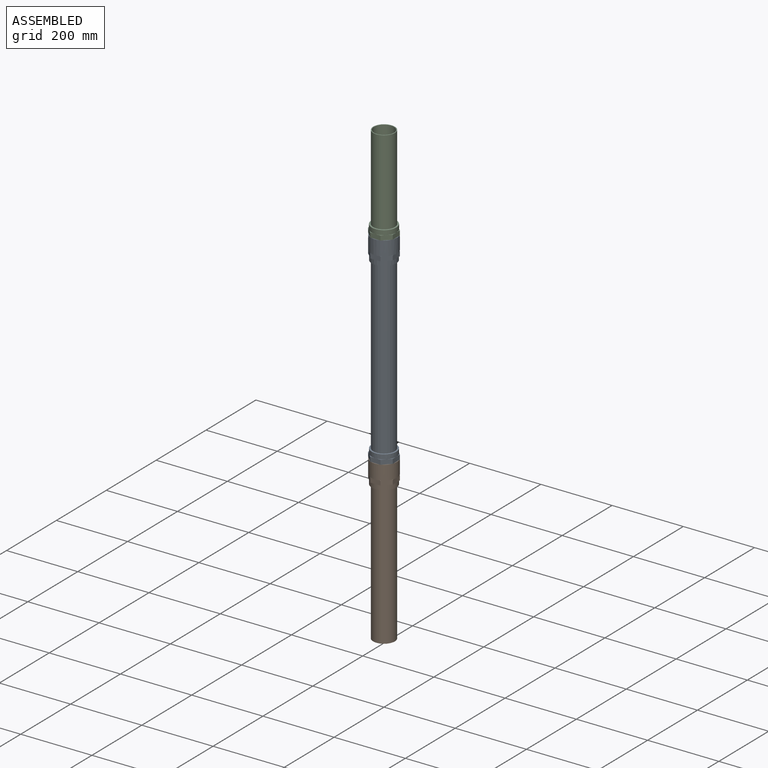
[diagram: assembled view]
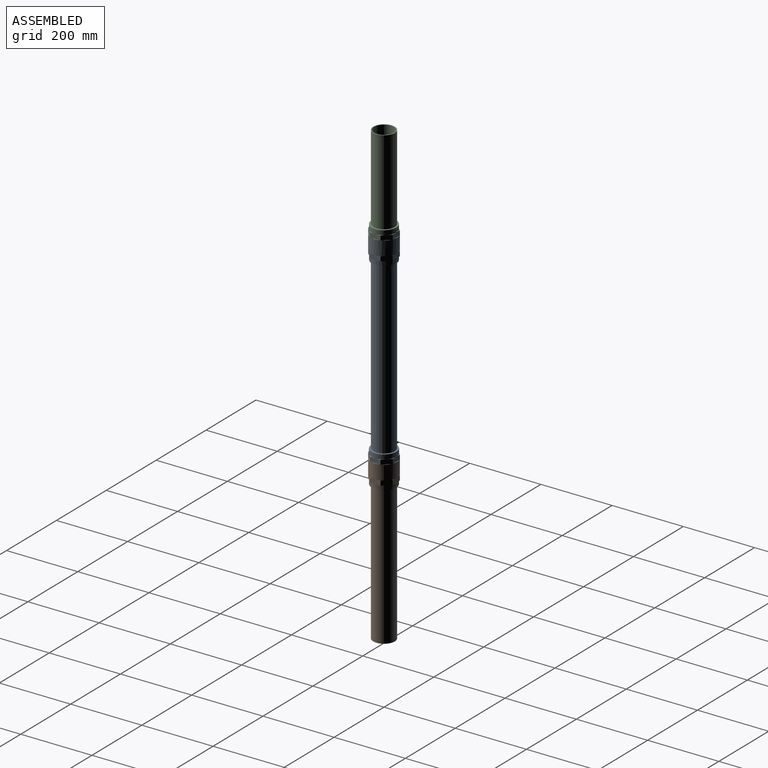
[diagram: assembled view, second angle]
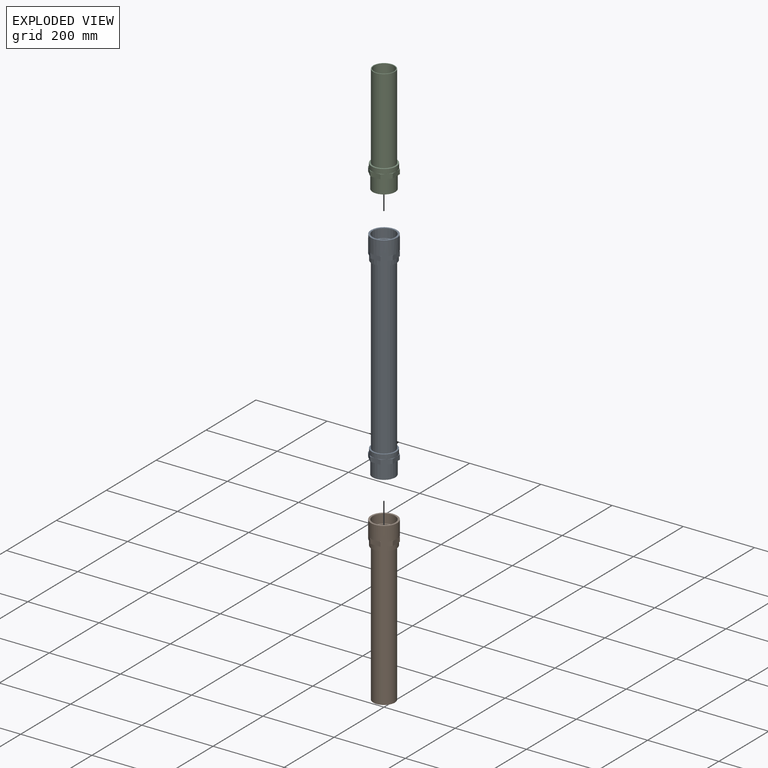
[diagram: exploded view]
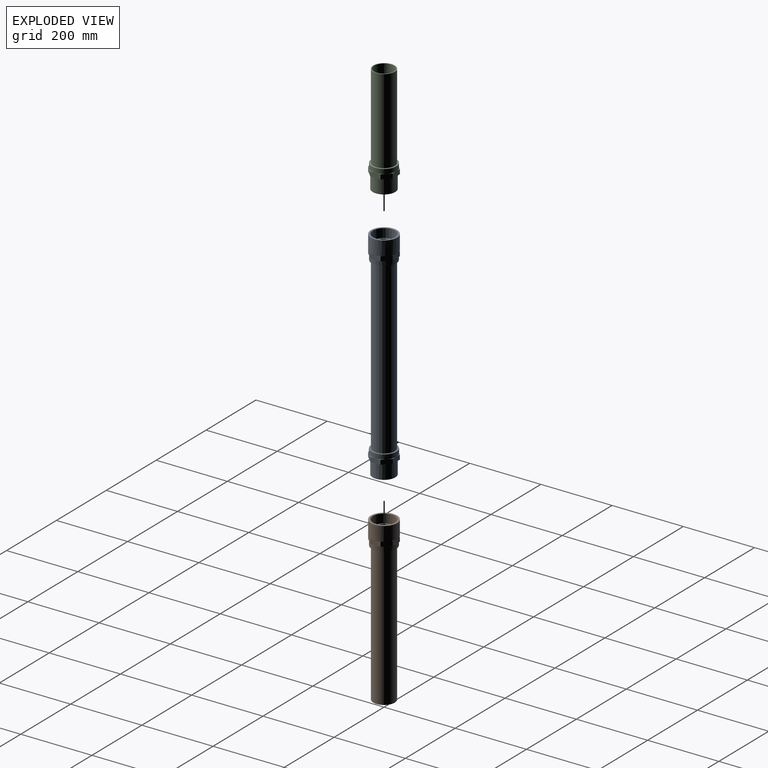
[diagram: exploded view, second angle]
ASSEMBLY  parts=3 mates=2
PART A: 54 faces, bbox 73.2x73.2x609.6 mm
  f0: cylinder r=34.67mm len=69.34mm, axis (0,0,-1), area 2766.6mm2, adj f13,f46,f47,f48,f49,f50,f51,f52
  f1: plane 16.48x16.48mm, normal (0,0,-1), area 29.7mm2, adj f17,f28
  f2: plane 23.3x1.91mm, normal (0,0,-1), area 29.7mm2, adj f17,f35
  f3: plane 16.48x16.48mm, normal (0,0,-1), area 29.7mm2, adj f17,f34
  f4: plane 23.3x1.91mm, normal (0,0,-1), area 29.7mm2, adj f17,f33
  f5: plane 16.48x16.48mm, normal (0,0,-1), area 29.7mm2, adj f17,f32
  f6: plane 23.3x1.91mm, normal (0,0,-1), area 29.7mm2, adj f17,f31
  f7: plane 16.48x16.48mm, normal (0,0,-1), area 29.7mm2, adj f17,f30
  f8: plane 23.3x1.91mm, normal (0,0,-1), area 29.7mm2, adj f17,f29
  f9: cylinder r=27.94mm len=584.2mm, axis (0,0,-1), area 102557.6mm2, adj f10,f20
  f10: plane 63.5x63.5mm, normal (0,0,-1), area 714.5mm2, adj f9,f11
  f11: cylinder r=31.75mm len=63.5mm, axis (0,0,-1), area 8107.3mm2, adj f10,f12
  f12: plane 69.34x69.34mm, normal (0,0,-1), area 816.4mm2, adj f11,f38,f39,f40,f41,f42,f43,f44
  f13: plane 69.34x69.34mm, normal (0,0,1), area 889.3mm2, adj f0,f14
  f14: cylinder r=30.31mm len=478.03mm, axis (0,0,-1), area 91052mm2, adj f13,f15
  f15: plane 69.09x69.09mm, normal (0,0,-1), area 861.7mm2, adj f14,f16
  f16: cylinder r=34.54mm len=69.09mm, axis (0,0,-1), area 2756.5mm2, adj f15,f36
  f17: cylinder r=36.58mm len=73.15mm, axis (0,0,-1), area 9222.9mm2, adj f1,f2,f3,f4,f5,f6,f7,f8
  f18: plane 73.15x73.15mm, normal (0,0,1), area 1086.4mm2, adj f17,f19
  f19: cylinder r=31.5mm len=62.99mm, axis (0,0,-1), area 5026.5mm2, adj f18,f20
  f20: plane 62.99x62.99mm, normal (0,0,1), area 664mm2, adj f9,f19
  f21: plane 4.63x1.92mm, normal (0,0,1), area 2.3mm2, adj f17,f33,f34
  f22: plane 4.63x1.92mm, normal (0,0,1), area 2.3mm2, adj f17,f34,f35
  f23: plane 4.63x1.92mm, normal (0,0,1), area 2.3mm2, adj f17,f28,f35
  f24: plane 4.63x1.92mm, normal (0,0,1), area 2.3mm2, adj f17,f28,f29
  f25: plane 4.63x1.92mm, normal (0,0,1), area 2.3mm2, adj f17,f29,f30
  f26: plane 4.63x1.92mm, normal (0,0,1), area 2.3mm2, adj f17,f30,f31
  f27: plane 4.63x1.92mm, normal (0,0,1), area 2.3mm2, adj f17,f31,f32
  f28: plane 20.31x20.31mm, normal (0.71,0.71,0), area 364.8mm2, adj f1,f23,f24,f29,f35,f36
  f29: plane 28.72x12.7mm, normal (1,0,0), area 364.8mm2, adj f8,f24,f25,f28,f30,f36
  f30: plane 20.31x20.31mm, normal (0.71,-0.71,0), area 364.8mm2, adj f7,f25,f26,f29,f31,f36
  f31: plane 28.72x12.7mm, normal (0,-1,0), area 364.8mm2, adj f6,f26,f27,f30,f32,f36
  f32: plane 20.31x20.31mm, normal (-0.71,-0.71,0), area 364.8mm2, adj f5,f27,f31,f33,f36,f37
  f33: plane 28.72x12.7mm, normal (-1,0,0), area 364.8mm2, adj f4,f21,f32,f34,f36,f37
  f34: plane 20.31x20.31mm, normal (-0.71,0.71,0), area 364.8mm2, adj f3,f21,f22,f33,f35,f36
  f35: plane 28.72x12.7mm, normal (0,1,0), area 364.8mm2, adj f2,f22,f23,f28,f34,f36
  f36: plane 69.34x69.34mm, normal (0,0,-1), area 234.5mm2, adj f16,f28,f29,f30,f31,f32,f33,f34
  f37: plane 4.63x1.92mm, normal (0,0,1), area 2.3mm2, adj f17,f32,f33
  f38: plane 20.31x20.31mm, normal (0.71,0.71,0), area 364.8mm2, adj f12,f39,f45,f50,f51
  f39: plane 28.72x12.7mm, normal (1,0,0), area 364.8mm2, adj f12,f38,f40,f49,f50
  f40: plane 20.31x20.31mm, normal (0.71,-0.71,0), area 364.8mm2, adj f12,f39,f41,f48,f49
  f41: plane 28.72x12.7mm, normal (0,-1,0), area 364.8mm2, adj f12,f40,f42,f47,f48
  f42: plane 20.31x20.31mm, normal (-0.71,-0.71,0), area 364.8mm2, adj f12,f41,f43,f46,f47
  f43: plane 28.72x12.7mm, normal (-1,0,0), area 364.8mm2, adj f12,f42,f44,f46,f53
  f44: plane 20.31x20.31mm, normal (-0.71,0.71,0), area 364.8mm2, adj f12,f43,f45,f52,f53
  f45: plane 28.72x12.7mm, normal (0,1,0), area 364.8mm2, adj f12,f38,f44,f51,f52
  f46: plane 24.52x10.16mm, normal (0,0,1), area 25.9mm2, adj f0,f42,f43
  f47: plane 24.52x10.16mm, normal (0,0,1), area 25.9mm2, adj f0,f41,f42
  f48: plane 24.52x10.16mm, normal (0,0,1), area 25.9mm2, adj f0,f40,f41
  f49: plane 24.52x10.16mm, normal (0,0,1), area 25.9mm2, adj f0,f39,f40
  f50: plane 24.52x10.16mm, normal (0,0,1), area 25.9mm2, adj f0,f38,f39
  f51: plane 24.52x10.16mm, normal (0,0,1), area 25.9mm2, adj f0,f38,f45
  f52: plane 24.52x10.16mm, normal (0,0,1), area 25.9mm2, adj f0,f44,f45
  f53: plane 24.52x10.16mm, normal (0,0,1), area 25.9mm2, adj f0,f43,f44
PART B: 34 faces, bbox 73.2x73.2x457.2 mm
  f0: cylinder r=27.94mm len=431.8mm, axis (0,0,-1), area 75803.4mm2, adj f15,f33
  f1: cylinder r=30.31mm len=391.67mm, axis (0,0,-1), area 74602.6mm2, adj f10,f33
  f2: plane 16.48x16.48mm, normal (0,0,-1), area 29.7mm2, adj f12,f23
  f3: plane 23.3x1.91mm, normal (0,0,-1), area 29.7mm2, adj f12,f30
  f4: plane 16.48x16.48mm, normal (0,0,-1), area 29.7mm2, adj f12,f29
  f5: plane 23.3x1.91mm, normal (0,0,-1), area 29.7mm2, adj f12,f28
  f6: plane 16.48x16.48mm, normal (0,0,-1), area 29.7mm2, adj f12,f27
  f7: plane 23.3x1.91mm, normal (0,0,-1), area 29.7mm2, adj f12,f26
  f8: plane 16.48x16.48mm, normal (0,0,-1), area 29.7mm2, adj f12,f25
  f9: plane 23.3x1.91mm, normal (0,0,-1), area 29.7mm2, adj f12,f24
  f10: plane 69.09x69.09mm, normal (0,0,-1), area 861.7mm2, adj f1,f11
  f11: cylinder r=34.54mm len=69.09mm, axis (0,0,-1), area 2756.5mm2, adj f10,f31
  f12: cylinder r=36.58mm len=73.15mm, axis (0,0,-1), area 9222.9mm2, adj f2,f3,f4,f5,f6,f7,f8,f9
  f13: plane 73.15x73.15mm, normal (0,0,1), area 1086.4mm2, adj f12,f14
  f14: cylinder r=31.5mm len=62.99mm, axis (0,0,-1), area 5026.5mm2, adj f13,f15
  f15: plane 62.99x62.99mm, normal (0,0,1), area 664mm2, adj f0,f14
  f16: plane 4.63x1.92mm, normal (0,0,1), area 2.3mm2, adj f12,f28,f29
  f17: plane 4.63x1.92mm, normal (0,0,1), area 2.3mm2, adj f12,f29,f30
  f18: plane 4.63x1.92mm, normal (0,0,1), area 2.3mm2, adj f12,f23,f30
  f19: plane 4.63x1.92mm, normal (0,0,1), area 2.3mm2, adj f12,f23,f24
  f20: plane 4.63x1.92mm, normal (0,0,1), area 2.3mm2, adj f12,f24,f25
  f21: plane 4.63x1.92mm, normal (0,0,1), area 2.3mm2, adj f12,f25,f26
  f22: plane 4.63x1.92mm, normal (0,0,1), area 2.3mm2, adj f12,f26,f27
  f23: plane 20.31x20.31mm, normal (0.71,0.71,0), area 364.8mm2, adj f2,f18,f19,f24,f30,f31
  f24: plane 28.72x12.7mm, normal (1,0,0), area 364.8mm2, adj f9,f19,f20,f23,f25,f31
  f25: plane 20.31x20.31mm, normal (0.71,-0.71,0), area 364.8mm2, adj f8,f20,f21,f24,f26,f31
  f26: plane 28.72x12.7mm, normal (0,-1,0), area 364.8mm2, adj f7,f21,f22,f25,f27,f31
  f27: plane 20.31x20.31mm, normal (-0.71,-0.71,0), area 364.8mm2, adj f6,f22,f26,f28,f31,f32
  f28: plane 28.72x12.7mm, normal (-1,0,0), area 364.8mm2, adj f5,f16,f27,f29,f31,f32
  f29: plane 20.31x20.31mm, normal (-0.71,0.71,0), area 364.8mm2, adj f4,f16,f17,f28,f30,f31
  f30: plane 28.72x12.7mm, normal (0,1,0), area 364.8mm2, adj f3,f17,f18,f23,f29,f31
  f31: plane 69.34x69.34mm, normal (0,0,-1), area 234.5mm2, adj f11,f23,f24,f25,f26,f27,f28,f29
  f32: plane 4.63x1.92mm, normal (0,0,1), area 2.3mm2, adj f12,f27,f28
  f33: plane 60.63x60.63mm, normal (0,0,-1), area 434.6mm2, adj f0,f1
PART C: 24 faces, bbox 69.3x69.3x304.8 mm
  f0: cylinder r=34.67mm len=69.34mm, axis (0,0,-1), area 2766.6mm2, adj f5,f15,f16,f17,f18,f19,f20,f21
  f1: cylinder r=27.94mm len=304.8mm, axis (0,0,-1), area 53508.3mm2, adj f2,f23
  f2: plane 63.5x63.5mm, normal (0,0,-1), area 714.5mm2, adj f1,f3
  f3: cylinder r=31.75mm len=63.5mm, axis (0,0,-1), area 8107.3mm2, adj f2,f4
  f4: plane 69.34x69.34mm, normal (0,0,-1), area 816.4mm2, adj f3,f7,f8,f9,f10,f11,f12,f13
  f5: plane 69.34x69.34mm, normal (0,0,1), area 889.3mm2, adj f0,f6
  f6: cylinder r=30.31mm len=238.76mm, axis (0,0,-1), area 45477.6mm2, adj f5,f23
  f7: plane 20.31x20.31mm, normal (0.71,0.71,0), area 364.8mm2, adj f4,f8,f14,f19,f20
  f8: plane 28.72x12.7mm, normal (1,0,0), area 364.8mm2, adj f4,f7,f9,f18,f19
  f9: plane 20.31x20.31mm, normal (0.71,-0.71,0), area 364.8mm2, adj f4,f8,f10,f17,f18
  f10: plane 28.72x12.7mm, normal (0,-1,0), area 364.8mm2, adj f4,f9,f11,f16,f17
  f11: plane 20.31x20.31mm, normal (-0.71,-0.71,0), area 364.8mm2, adj f4,f10,f12,f15,f16
  f12: plane 28.72x12.7mm, normal (-1,0,0), area 364.8mm2, adj f4,f11,f13,f15,f22
  f13: plane 20.31x20.31mm, normal (-0.71,0.71,0), area 364.8mm2, adj f4,f12,f14,f21,f22
  f14: plane 28.72x12.7mm, normal (0,1,0), area 364.8mm2, adj f4,f7,f13,f20,f21
  f15: plane 24.52x10.16mm, normal (0,0,1), area 25.9mm2, adj f0,f11,f12
  f16: plane 24.52x10.16mm, normal (0,0,1), area 25.9mm2, adj f0,f10,f11
  f17: plane 24.52x10.16mm, normal (0,0,1), area 25.9mm2, adj f0,f9,f10
  f18: plane 24.52x10.16mm, normal (0,0,1), area 25.9mm2, adj f0,f8,f9
  f19: plane 24.52x10.16mm, normal (0,0,1), area 25.9mm2, adj f0,f7,f8
  f20: plane 24.52x10.16mm, normal (0,0,1), area 25.9mm2, adj f0,f7,f14
  f21: plane 24.52x10.16mm, normal (0,0,1), area 25.9mm2, adj f0,f13,f14
  f22: plane 24.52x10.16mm, normal (0,0,1), area 25.9mm2, adj f0,f12,f13
  f23: plane 60.63x60.63mm, normal (0,0,1), area 434.6mm2, adj f1,f6
PLACE A at identity
PLACE B t=(0,0,-568.96)mm
PLACE C t=(0,0,568.96)mm
MATE cylindrical B.f0 <-> A.f0  axis (0,0,1) through (0,0,40.64)mm
MATE cylindrical C.f0 <-> A.f0  axis (0,0,-1) through (0,0,609.6)mm
